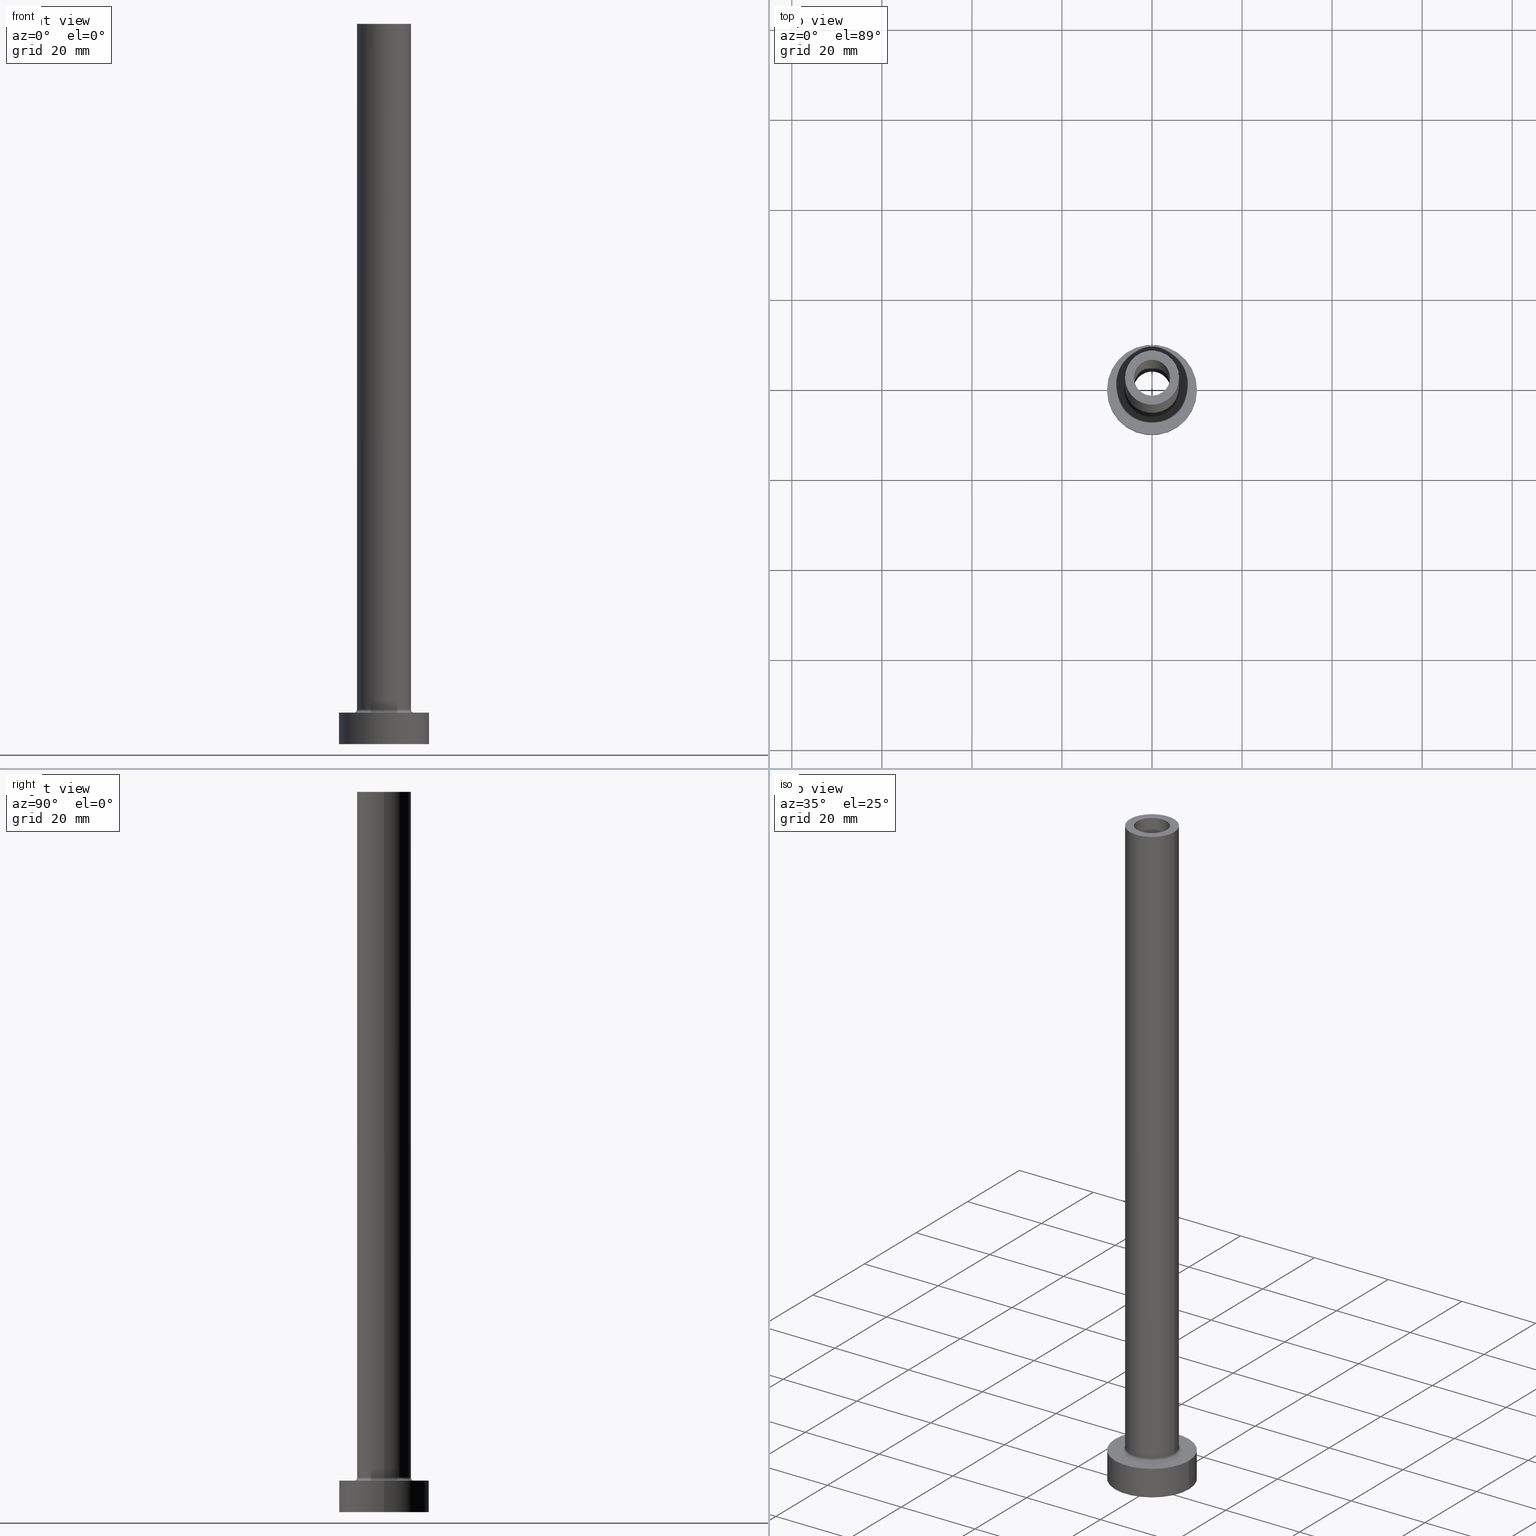
[diagram: canonical four-view strip — front | top / right | iso, engineering-drawing reading convention]
A machine part, canonical four-view strip (front | top / right | iso — engineering-drawing reading convention). The complete STEP part file that produces these views, byte-faithful:
ISO-10303-21;
HEADER;
FILE_DESCRIPTION (( 'STEP AP203' ),
    '1' );
FILE_NAME ('4ad9.STEP',
    '2023-02-13T12:46:25',
    ( '' ),
    ( '' ),
    'SwSTEP 2.0',
    'SolidWorks 2019',
    '' );
FILE_SCHEMA (( 'CONFIG_CONTROL_DESIGN' ));
ENDSEC;

DATA;
#1 = APPROVAL_STATUS ( 'not_yet_approved' ) ;
#2 = CARTESIAN_POINT ( 'NONE',  ( 0.000000000000000000, 0.000000000000000000, 160.0000000000000000 ) ) ;
#3 = CARTESIAN_POINT ( 'NONE',  ( 0.000000000000000000, 0.000000000000000000, 7.700000000000012612 ) ) ;
#4 = CC_DESIGN_PERSON_AND_ORGANIZATION_ASSIGNMENT ( #256, #426, ( #94 ) ) ;
#5 = DIRECTION ( 'NONE',  ( 1.000000000000000000, 0.000000000000000000, -0.000000000000000000 ) ) ;
#6 = AXIS2_PLACEMENT_3D ( 'NONE', #95, #412, #376 ) ;
#7 = ORIENTED_EDGE ( 'NONE', *, *, #296, .T. ) ;
#8 = DIRECTION ( 'NONE',  ( 1.000000000000000000, 0.000000000000000000, 0.000000000000000000 ) ) ;
#9 = ADVANCED_BREP_SHAPE_REPRESENTATION ( '4ad9', ( #167, #405 ), #417 ) ;
#10 = CYLINDRICAL_SURFACE ( 'NONE', #236, 4.150000000000000355 ) ;
#11 =( NAMED_UNIT ( * ) SI_UNIT ( $, .STERADIAN. ) SOLID_ANGLE_UNIT ( ) );
#12 = ORIENTED_EDGE ( 'NONE', *, *, #119, .F. ) ;
#13 = APPROVAL_DATE_TIME ( #342, #14 ) ;
#14 = APPROVAL ( #222, 'NEUR�EN�' ) ;
#15 = AXIS2_PLACEMENT_3D ( 'NONE', #53, #116, #439 ) ;
#16 = ORIENTED_EDGE ( 'NONE', *, *, #203, .F. ) ;
#17 = AXIS2_PLACEMENT_3D ( 'NONE', #457, #315, #384 ) ;
#18 = VERTEX_POINT ( 'NONE', #299 ) ;
#19 = DIRECTION ( 'NONE',  ( -0.000000000000000000, -0.000000000000000000, -1.000000000000000000 ) ) ;
#20 = DIRECTION ( 'NONE',  ( 0.000000000000000000, 0.000000000000000000, 1.000000000000000000 ) ) ;
#21 = CYLINDRICAL_SURFACE ( 'NONE', #355, 4.000000000000000000 ) ;
#22 = ADVANCED_FACE ( 'NONE', ( #294, #332 ), #327, .T. ) ;
#23 = CARTESIAN_POINT ( 'NONE',  ( 4.000000000000000000, 4.898587196589411843E-16, 160.0000000000000000 ) ) ;
#24 = DIRECTION ( 'NONE',  ( 0.000000000000000000, 0.000000000000000000, 1.000000000000000000 ) ) ;
#25 = AXIS2_PLACEMENT_3D ( 'NONE', #269, #410, #272 ) ;
#26 = FACE_OUTER_BOUND ( 'NONE', #185, .T. ) ;
#27 = APPROVAL ( #1, 'NEUR�EN�' ) ;
#28 = VERTEX_POINT ( 'NONE', #263 ) ;
#29 = VERTEX_POINT ( 'NONE', #150 ) ;
#30 = ORIENTED_EDGE ( 'NONE', *, *, #266, .T. ) ;
#31 = CC_DESIGN_APPROVAL ( #14, ( #248 ) ) ;
#32 = DIRECTION ( 'NONE',  ( 1.000000000000000000, 0.000000000000000000, 0.000000000000000000 ) ) ;
#33 = ORIENTED_EDGE ( 'NONE', *, *, #71, .F. ) ;
#34 = FACE_BOUND ( 'NONE', #59, .T. ) ;
#35 = ADVANCED_FACE ( 'NONE', ( #120 ), #10, .F. ) ;
#36 = AXIS2_PLACEMENT_3D ( 'NONE', #372, #295, #400 ) ;
#37 = VECTOR ( 'NONE', #140, 1000.000000000000000 ) ;
#38 = APPLICATION_PROTOCOL_DEFINITION ( 'international standard', 'config_control_design', 1994, #409 ) ;
#39 = LINE ( 'NONE', #43, #65 ) ;
#40 = DATE_TIME_ROLE ( 'classification_date' ) ;
#41 = CARTESIAN_POINT ( 'NONE',  ( 10.00000000000000000, 1.224646799147353256E-15, 0.000000000000000000 ) ) ;
#42 = ADVANCED_FACE ( 'NONE', ( #259 ), #328, .F. ) ;
#43 = CARTESIAN_POINT ( 'NONE',  ( 4.000000000000000000, 4.898587196589411843E-16, 160.0000000000000000 ) ) ;
#44 = ORIENTED_EDGE ( 'NONE', *, *, #391, .F. ) ;
#45 = CARTESIAN_POINT ( 'NONE',  ( 0.000000000000000000, 0.000000000000000000, 160.0000000000000000 ) ) ;
#46 = DIRECTION ( 'NONE',  ( 0.000000000000000000, 0.000000000000000000, -1.000000000000000000 ) ) ;
#47 = CARTESIAN_POINT ( 'NONE',  ( 0.000000000000000000, 0.000000000000000000, 160.0000000000000000 ) ) ;
#48 = CARTESIAN_POINT ( 'NONE',  ( 0.000000000000000000, 0.000000000000000000, 7.700000000000012612 ) ) ;
#49 = CC_DESIGN_APPROVAL ( #175, ( #271 ) ) ;
#50 = COORDINATED_UNIVERSAL_TIME_OFFSET ( 1, 0, .AHEAD. ) ;
#51 = FACE_OUTER_BOUND ( 'NONE', #399, .T. ) ;
#52 = ORIENTED_EDGE ( 'NONE', *, *, #349, .T. ) ;
#53 = CARTESIAN_POINT ( 'NONE',  ( 0.000000000000000000, 0.000000000000000000, 115.0000000000000000 ) ) ;
#54 =( LENGTH_UNIT ( ) NAMED_UNIT ( * ) SI_UNIT ( .MILLI., .METRE. ) );
#55 = DIRECTION ( 'NONE',  ( 1.000000000000000000, 0.000000000000000000, 0.000000000000000000 ) ) ;
#56 = EDGE_CURVE ( 'NONE', #69, #321, #105, .T. ) ;
#57 = DIRECTION ( 'NONE',  ( 1.000000000000000000, 0.000000000000000000, 0.000000000000000000 ) ) ;
#58 = ORIENTED_EDGE ( 'NONE', *, *, #89, .F. ) ;
#59 = EDGE_LOOP ( 'NONE', ( #325, #160 ) ) ;
#60 = AXIS2_PLACEMENT_3D ( 'NONE', #406, #233, #440 ) ;
#61 = AXIS2_PLACEMENT_3D ( 'NONE', #449, #168, #441 ) ;
#62 = CC_DESIGN_PERSON_AND_ORGANIZATION_ASSIGNMENT ( #443, #157, ( #248 ) ) ;
#63 = DIRECTION ( 'NONE',  ( -0.000000000000000000, -0.000000000000000000, -1.000000000000000000 ) ) ;
#64 = FACE_BOUND ( 'NONE', #415, .T. ) ;
#65 = VECTOR ( 'NONE', #46, 1000.000000000000000 ) ;
#66 = EDGE_CURVE ( 'NONE', #386, #91, #85, .T. ) ;
#67 = DIRECTION ( 'NONE',  ( -1.000000000000000000, 1.224646799147353454E-16, 0.000000000000000000 ) ) ;
#68 = DIRECTION ( 'NONE',  ( 0.000000000000000000, 0.000000000000000000, 1.000000000000000000 ) ) ;
#69 = VERTEX_POINT ( 'NONE', #382 ) ;
#70 = APPROVAL_PERSON_ORGANIZATION ( #184, #27, #145 ) ;
#71 = EDGE_CURVE ( 'NONE', #29, #28, #344, .T. ) ;
#72 = LINE ( 'NONE', #358, #37 ) ;
#73 = APPROVAL_DATE_TIME ( #388, #175 ) ;
#74 = ORIENTED_EDGE ( 'NONE', *, *, #89, .T. ) ;
#75 = APPROVAL_DATE_TIME ( #141, #27 ) ;
#76 = DATE_AND_TIME ( #186, #324 ) ;
#77 = ADVANCED_FACE ( 'NONE', ( #130 ), #309, .T. ) ;
#78 = CIRCLE ( 'NONE', #135, 4.000000000000000000 ) ;
#79 = CIRCLE ( 'NONE', #205, 0.7000000000000000666 ) ;
#80 = ORIENTED_EDGE ( 'NONE', *, *, #71, .T. ) ;
#81 = CARTESIAN_POINT ( 'NONE',  ( 0.000000000000000000, 0.000000000000000000, 115.0000000000000000 ) ) ;
#82 = APPROVAL_ROLE ( '' ) ;
#83 = ORIENTED_EDGE ( 'NONE', *, *, #217, .F. ) ;
#84 = CARTESIAN_POINT ( 'NONE',  ( 0.000000000000000000, 0.000000000000000000, 0.000000000000000000 ) ) ;
#85 = CIRCLE ( 'NONE', #189, 10.00000000000000000 ) ;
#86 = DIRECTION ( 'NONE',  ( 0.000000000000000000, 0.000000000000000000, -1.000000000000000000 ) ) ;
#87 = VECTOR ( 'NONE', #63, 1000.000000000000000 ) ;
#88 = DIRECTION ( 'NONE',  ( 1.000000000000000000, 0.000000000000000000, 0.000000000000000000 ) ) ;
#89 = EDGE_CURVE ( 'NONE', #281, #174, #297, .T. ) ;
#90 = FACE_OUTER_BOUND ( 'NONE', #436, .T. ) ;
#91 = VERTEX_POINT ( 'NONE', #41 ) ;
#92 = CC_DESIGN_PERSON_AND_ORGANIZATION_ASSIGNMENT ( #221, #252, ( #271 ) ) ;
#93 = ORIENTED_EDGE ( 'NONE', *, *, #66, .T. ) ;
#94 = SECURITY_CLASSIFICATION ( '', '', #429 ) ;
#95 = CARTESIAN_POINT ( 'NONE',  ( 0.000000000000000000, 0.000000000000000000, 160.0000000000000000 ) ) ;
#96 = CYLINDRICAL_SURFACE ( 'NONE', #61, 4.150000000000000355 ) ;
#97 = CIRCLE ( 'NONE', #416, 4.150000000000000355 ) ;
#98 = CC_DESIGN_PERSON_AND_ORGANIZATION_ASSIGNMENT ( #363, #288, ( #179 ) ) ;
#99 = ORIENTED_EDGE ( 'NONE', *, *, #119, .T. ) ;
#100 = EDGE_LOOP ( 'NONE', ( #33, #133, #267, #362 ) ) ;
#101 = CARTESIAN_POINT ( 'NONE',  ( 0.000000000000000000, 0.000000000000000000, 115.0000000000000000 ) ) ;
#102 = CARTESIAN_POINT ( 'NONE',  ( 6.000000000000000888, 7.347880794884120722E-16, 160.0000000000000000 ) ) ;
#103 = EDGE_CURVE ( 'NONE', #192, #104, #444, .T. ) ;
#104 = VERTEX_POINT ( 'NONE', #102 ) ;
#105 = CIRCLE ( 'NONE', #60, 6.700000000000001066 ) ;
#106 = DIRECTION ( 'NONE',  ( 0.000000000000000000, 0.000000000000000000, 1.000000000000000000 ) ) ;
#107 = EDGE_LOOP ( 'NONE', ( #117, #80, #319, #44 ) ) ;
#108 = DIRECTION ( 'NONE',  ( 1.000000000000000000, 0.000000000000000000, 0.000000000000000000 ) ) ;
#109 = CALENDAR_DATE ( 2023, 13, 2 ) ;
#110 = PRODUCT_DEFINITION_SHAPE ( 'NONE', 'NONE',  #248 ) ;
#111 = ORIENTED_EDGE ( 'NONE', *, *, #407, .F. ) ;
#112 = EDGE_CURVE ( 'NONE', #234, #195, #136, .T. ) ;
#113 = CALENDAR_DATE ( 2023, 13, 2 ) ;
#114 =( NAMED_UNIT ( * ) PLANE_ANGLE_UNIT ( ) SI_UNIT ( $, .RADIAN. ) );
#115 = CIRCLE ( 'NONE', #245, 4.000000000000000000 ) ;
#116 = DIRECTION ( 'NONE',  ( 0.000000000000000000, 0.000000000000000000, 1.000000000000000000 ) ) ;
#117 = ORIENTED_EDGE ( 'NONE', *, *, #198, .T. ) ;
#118 = EDGE_LOOP ( 'NONE', ( #351, #126 ) ) ;
#119 = EDGE_CURVE ( 'NONE', #91, #386, #227, .T. ) ;
#120 = FACE_OUTER_BOUND ( 'NONE', #107, .T. ) ;
#121 = DIRECTION ( 'NONE',  ( 0.000000000000000000, 0.000000000000000000, 1.000000000000000000 ) ) ;
#122 = VERTEX_POINT ( 'NONE', #201 ) ;
#123 = LOCAL_TIME ( 13, 46, 25.00000000000000000, #396 ) ;
#124 = DIRECTION ( 'NONE',  ( 1.000000000000000000, 0.000000000000000000, 0.000000000000000000 ) ) ;
#125 = CC_DESIGN_DATE_AND_TIME_ASSIGNMENT ( #76, #147, ( #248 ) ) ;
#126 = ORIENTED_EDGE ( 'NONE', *, *, #56, .T. ) ;
#127 = CARTESIAN_POINT ( 'NONE',  ( 4.150000000000000355, 5.082284216461515156E-16, 126.7379725676967013 ) ) ;
#128 = AXIS2_PLACEMENT_3D ( 'NONE', #134, #277, #137 ) ;
#129 = APPROVAL_PERSON_ORGANIZATION ( #430, #14, #82 ) ;
#130 = FACE_OUTER_BOUND ( 'NONE', #454, .T. ) ;
#131 = DIRECTION ( 'NONE',  ( 0.000000000000000000, 0.000000000000000000, -1.000000000000000000 ) ) ;
#132 = EDGE_CURVE ( 'NONE', #321, #69, #312, .T. ) ;
#133 = ORIENTED_EDGE ( 'NONE', *, *, #188, .T. ) ;
#134 = CARTESIAN_POINT ( 'NONE',  ( 0.000000000000000000, 0.000000000000000000, 7.700000000000012612 ) ) ;
#135 = AXIS2_PLACEMENT_3D ( 'NONE', #298, #106, #32 ) ;
#136 = CIRCLE ( 'NONE', #244, 10.00000000000000000 ) ;
#137 = DIRECTION ( 'NONE',  ( 1.000000000000000000, 0.000000000000000000, 0.000000000000000000 ) ) ;
#138 = CC_DESIGN_PERSON_AND_ORGANIZATION_ASSIGNMENT ( #287, #250, ( #271 ) ) ;
#139 = CARTESIAN_POINT ( 'NONE',  ( -10.00000000000000000, 0.000000000000000000, 7.000000000000000000 ) ) ;
#140 = DIRECTION ( 'NONE',  ( -0.000000000000000000, -0.000000000000000000, -1.000000000000000000 ) ) ;
#141 = DATE_AND_TIME ( #390, #142 ) ;
#142 = LOCAL_TIME ( 13, 46, 25.00000000000000000, #246 ) ;
#143 = DIRECTION ( 'NONE',  ( 0.000000000000000000, 0.000000000000000000, 1.000000000000000000 ) ) ;
#144 = CARTESIAN_POINT ( 'NONE',  ( -4.150000000000000355, 0.000000000000000000, 126.7379725676967013 ) ) ;
#145 = APPROVAL_ROLE ( '' ) ;
#146 = DIRECTION ( 'NONE',  ( 1.000000000000000000, 0.000000000000000000, 0.000000000000000000 ) ) ;
#147 = DATE_TIME_ROLE ( 'creation_date' ) ;
#148 = LOCAL_TIME ( 13, 46, 25.00000000000000000, #50 ) ;
#149 = DIRECTION ( 'NONE',  ( -0.000000000000000000, -0.000000000000000000, -1.000000000000000000 ) ) ;
#150 = CARTESIAN_POINT ( 'NONE',  ( 4.150000000000000355, 5.082284216461515156E-16, 115.0000000000000000 ) ) ;
#151 = ORIENTED_EDGE ( 'NONE', *, *, #335, .F. ) ;
#152 = ADVANCED_FACE ( 'NONE', ( #90 ), #196, .T. ) ;
#153 = ORIENTED_EDGE ( 'NONE', *, *, #349, .F. ) ;
#154 = ORIENTED_EDGE ( 'NONE', *, *, #418, .T. ) ;
#155 = DIRECTION ( 'NONE',  ( 0.000000000000000000, 0.000000000000000000, 1.000000000000000000 ) ) ;
#156 = ORIENTED_EDGE ( 'NONE', *, *, #217, .T. ) ;
#157 = PERSON_AND_ORGANIZATION_ROLE ( 'creator' ) ;
#158 = EDGE_LOOP ( 'NONE', ( #337, #12 ) ) ;
#159 = CIRCLE ( 'NONE', #379, 0.7000000000000000666 ) ;
#160 = ORIENTED_EDGE ( 'NONE', *, *, #182, .F. ) ;
#161 = VECTOR ( 'NONE', #282, 1000.000000000000000 ) ;
#162 = EDGE_CURVE ( 'NONE', #281, #321, #159, .T. ) ;
#163 = DIRECTION ( 'NONE',  ( -1.000000000000000000, 0.000000000000000000, 0.000000000000000000 ) ) ;
#164 = ORIENTED_EDGE ( 'NONE', *, *, #413, .F. ) ;
#165 = DIRECTION ( 'NONE',  ( 1.000000000000000000, 0.000000000000000000, 0.000000000000000000 ) ) ;
#166 = DESIGN_CONTEXT ( 'detailed design', #173, 'design' ) ;
#167 = MANIFOLD_SOLID_BREP ( 'Odebrat vysunut�m4', #306 ) ;
#168 = DIRECTION ( 'NONE',  ( 0.000000000000000000, 0.000000000000000000, -1.000000000000000000 ) ) ;
#169 = AXIS2_PLACEMENT_3D ( 'NONE', #350, #311, #450 ) ;
#170 = CIRCLE ( 'NONE', #411, 6.000000000000000888 ) ;
#171 = PLANE ( 'NONE',  #243 ) ;
#172 = CYLINDRICAL_SURFACE ( 'NONE', #25, 10.00000000000000000 ) ;
#173 = APPLICATION_CONTEXT ( 'configuration controlled 3d designs of mechanical parts and assemblies' ) ;
#174 = VERTEX_POINT ( 'NONE', #290 ) ;
#175 = APPROVAL ( #181, 'NEUR�EN�' ) ;
#176 = CARTESIAN_POINT ( 'NONE',  ( 0.000000000000000000, 0.000000000000000000, 115.0000000000000000 ) ) ;
#177 = VERTEX_POINT ( 'NONE', #432 ) ;
#178 = FACE_OUTER_BOUND ( 'NONE', #158, .T. ) ;
#179 = PRODUCT ( '4ad9', '4ad9', '', ( #183 ) ) ;
#180 = AXIS2_PLACEMENT_3D ( 'NONE', #45, #149, #303 ) ;
#181 = APPROVAL_STATUS ( 'not_yet_approved' ) ;
#182 = EDGE_CURVE ( 'NONE', #28, #18, #438, .T. ) ;
#183 = MECHANICAL_CONTEXT ( 'NONE', #409, 'mechanical' ) ;
#184 = PERSON_AND_ORGANIZATION ( #434, #445 ) ;
#185 = EDGE_LOOP ( 'NONE', ( #314, #52, #190, #83 ) ) ;
#186 = CALENDAR_DATE ( 2023, 13, 2 ) ;
#187 = DIRECTION ( 'NONE',  ( 0.000000000000000000, 0.000000000000000000, 1.000000000000000000 ) ) ;
#188 = EDGE_CURVE ( 'NONE', #29, #302, #97, .T. ) ;
#189 = AXIS2_PLACEMENT_3D ( 'NONE', #235, #374, #446 ) ;
#190 = ORIENTED_EDGE ( 'NONE', *, *, #335, .T. ) ;
#191 = AXIS2_PLACEMENT_3D ( 'NONE', #101, #214, #356 ) ;
#192 = VERTEX_POINT ( 'NONE', #229 ) ;
#193 = DIRECTION ( 'NONE',  ( -0.000000000000000000, -0.000000000000000000, -1.000000000000000000 ) ) ;
#194 = CARTESIAN_POINT ( 'NONE',  ( 0.000000000000000000, 0.000000000000000000, 0.000000000000000000 ) ) ;
#195 = VERTEX_POINT ( 'NONE', #435 ) ;
#196 = CYLINDRICAL_SURFACE ( 'NONE', #180, 6.000000000000000888 ) ;
#197 = DIRECTION ( 'NONE',  ( -1.000000000000000000, 0.000000000000000000, 0.000000000000000000 ) ) ;
#198 = EDGE_CURVE ( 'NONE', #302, #29, #220, .T. ) ;
#199 = DIRECTION ( 'NONE',  ( 0.000000000000000000, 0.000000000000000000, -1.000000000000000000 ) ) ;
#200 = ORIENTED_EDGE ( 'NONE', *, *, #203, .T. ) ;
#201 = CARTESIAN_POINT ( 'NONE',  ( -4.000000000000000000, 0.000000000000000000, 115.0000000000000000 ) ) ;
#202 = DIRECTION ( 'NONE',  ( 1.000000000000000000, 0.000000000000000000, 0.000000000000000000 ) ) ;
#203 = EDGE_CURVE ( 'NONE', #195, #234, #394, .T. ) ;
#204 = FACE_OUTER_BOUND ( 'NONE', #228, .T. ) ;
#205 = AXIS2_PLACEMENT_3D ( 'NONE', #249, #381, #67 ) ;
#206 = VERTEX_POINT ( 'NONE', #338 ) ;
#207 = CARTESIAN_POINT ( 'NONE',  ( -10.00000000000000000, 0.000000000000000000, 7.000000000000000000 ) ) ;
#208 = EDGE_LOOP ( 'NONE', ( #253, #420 ) ) ;
#209 = LINE ( 'NONE', #334, #237 ) ;
#210 = EDGE_CURVE ( 'NONE', #122, #177, #78, .T. ) ;
#211 = ORIENTED_EDGE ( 'NONE', *, *, #418, .F. ) ;
#212 = CARTESIAN_POINT ( 'NONE',  ( -10.00000000000000000, 0.000000000000000000, 0.000000000000000000 ) ) ;
#213 = LOCAL_TIME ( 13, 46, 25.00000000000000000, #323 ) ;
#214 = DIRECTION ( 'NONE',  ( 0.000000000000000000, 0.000000000000000000, 1.000000000000000000 ) ) ;
#215 = EDGE_LOOP ( 'NONE', ( #30, #339, #371, #151 ) ) ;
#216 = PLANE ( 'NONE',  #191 ) ;
#217 = EDGE_CURVE ( 'NONE', #177, #122, #115, .T. ) ;
#218 = CARTESIAN_POINT ( 'NONE',  ( 6.000000000000000888, 7.347880794884120722E-16, 160.0000000000000000 ) ) ;
#219 = PERSON_AND_ORGANIZATION ( #434, #445 ) ;
#220 = CIRCLE ( 'NONE', #15, 4.150000000000000355 ) ;
#221 = PERSON_AND_ORGANIZATION ( #434, #445 ) ;
#222 = APPROVAL_STATUS ( 'not_yet_approved' ) ;
#223 = DIRECTION ( 'NONE',  ( -0.000000000000000000, -0.000000000000000000, -1.000000000000000000 ) ) ;
#224 = CARTESIAN_POINT ( 'NONE',  ( 0.000000000000000000, 0.000000000000000000, 7.000000000000000000 ) ) ;
#225 = EDGE_CURVE ( 'NONE', #104, #281, #455, .T. ) ;
#226 = CARTESIAN_POINT ( 'NONE',  ( 0.000000000000000000, 0.000000000000000000, 0.000000000000000000 ) ) ;
#227 = CIRCLE ( 'NONE', #346, 10.00000000000000000 ) ;
#228 = EDGE_LOOP ( 'NONE', ( #456, #261 ) ) ;
#229 = CARTESIAN_POINT ( 'NONE',  ( -6.000000000000000888, 0.000000000000000000, 160.0000000000000000 ) ) ;
#230 = CARTESIAN_POINT ( 'NONE',  ( 0.000000000000000000, 0.000000000000000000, 7.000000000000000000 ) ) ;
#231 = CARTESIAN_POINT ( 'NONE',  ( 0.000000000000000000, 0.000000000000000000, 7.700000000000012612 ) ) ;
#232 = DIRECTION ( 'NONE',  ( 1.000000000000000000, 0.000000000000000000, 0.000000000000000000 ) ) ;
#233 = DIRECTION ( 'NONE',  ( -0.000000000000000000, -0.000000000000000000, -1.000000000000000000 ) ) ;
#234 = VERTEX_POINT ( 'NONE', #139 ) ;
#235 = CARTESIAN_POINT ( 'NONE',  ( 0.000000000000000000, 0.000000000000000000, 0.000000000000000000 ) ) ;
#236 = AXIS2_PLACEMENT_3D ( 'NONE', #291, #86, #365 ) ;
#237 = VECTOR ( 'NONE', #193, 1000.000000000000000 ) ;
#238 = ORIENTED_EDGE ( 'NONE', *, *, #56, .F. ) ;
#239 = FACE_OUTER_BOUND ( 'NONE', #100, .T. ) ;
#240 = UNCERTAINTY_MEASURE_WITH_UNIT (LENGTH_MEASURE( 1.000000000000000082E-05 ), #54, 'distance_accuracy_value', 'NONE');
#241 = CYLINDRICAL_SURFACE ( 'NONE', #285, 4.000000000000000000 ) ;
#242 = DIRECTION ( 'NONE',  ( 0.000000000000000000, 0.000000000000000000, -1.000000000000000000 ) ) ;
#243 = AXIS2_PLACEMENT_3D ( 'NONE', #273, #414, #378 ) ;
#244 = AXIS2_PLACEMENT_3D ( 'NONE', #224, #155, #232 ) ;
#245 = AXIS2_PLACEMENT_3D ( 'NONE', #176, #359, #316 ) ;
#246 = COORDINATED_UNIVERSAL_TIME_OFFSET ( 1, 0, .AHEAD. ) ;
#247 = FACE_OUTER_BOUND ( 'NONE', #208, .T. ) ;
#248 = PRODUCT_DEFINITION ( 'NEZN�M�', '', #271, #166 ) ;
#249 = CARTESIAN_POINT ( 'NONE',  ( -6.700000000000001066, 8.205133554287267548E-16, 7.700000000000012612 ) ) ;
#250 = PERSON_AND_ORGANIZATION_ROLE ( 'design_supplier' ) ;
#251 = DIRECTION ( 'NONE',  ( 1.000000000000000000, 0.000000000000000000, 0.000000000000000000 ) ) ;
#252 = PERSON_AND_ORGANIZATION_ROLE ( 'creator' ) ;
#253 = ORIENTED_EDGE ( 'NONE', *, *, #198, .F. ) ;
#254 = VECTOR ( 'NONE', #242, 1000.000000000000000 ) ;
#255 = TOROIDAL_SURFACE ( 'NONE', #264, 6.700000000000001066, 0.6999999999999999556 ) ;
#256 = PERSON_AND_ORGANIZATION ( #434, #445 ) ;
#257 = ADVANCED_FACE ( 'NONE', ( #280, #247 ), #216, .F. ) ;
#258 = CARTESIAN_POINT ( 'NONE',  ( 0.000000000000000000, 0.000000000000000000, 7.000000000000000000 ) ) ;
#259 = FACE_OUTER_BOUND ( 'NONE', #286, .T. ) ;
#260 = DIRECTION ( 'NONE',  ( 0.000000000000000000, 0.000000000000000000, 1.000000000000000000 ) ) ;
#261 = ORIENTED_EDGE ( 'NONE', *, *, #373, .T. ) ;
#262 = DIRECTION ( 'NONE',  ( 0.000000000000000000, 0.000000000000000000, -1.000000000000000000 ) ) ;
#263 = CARTESIAN_POINT ( 'NONE',  ( 4.150000000000000355, 5.082284216461515156E-16, 0.000000000000000000 ) ) ;
#264 = AXIS2_PLACEMENT_3D ( 'NONE', #231, #20, #343 ) ;
#265 = ORIENTED_EDGE ( 'NONE', *, *, #373, .F. ) ;
#266 = EDGE_CURVE ( 'NONE', #206, #317, #361, .T. ) ;
#267 = ORIENTED_EDGE ( 'NONE', *, *, #391, .T. ) ;
#268 = DIRECTION ( 'NONE',  ( 0.000000000000000000, 0.000000000000000000, -1.000000000000000000 ) ) ;
#269 = CARTESIAN_POINT ( 'NONE',  ( 0.000000000000000000, 0.000000000000000000, 7.000000000000000000 ) ) ;
#270 = ADVANCED_FACE ( 'NONE', ( #34, #178 ), #320, .F. ) ;
#271 = PRODUCT_DEFINITION_FORMATION_WITH_SPECIFIED_SOURCE ( 'LIBOVOLN�', '', #179, .NOT_KNOWN. ) ;
#272 = DIRECTION ( 'NONE',  ( -1.000000000000000000, 0.000000000000000000, 0.000000000000000000 ) ) ;
#273 = CARTESIAN_POINT ( 'NONE',  ( 0.000000000000000000, 0.000000000000000000, 160.0000000000000000 ) ) ;
#274 = EDGE_LOOP ( 'NONE', ( #16, #369, #99, #419 ) ) ;
#275 = ADVANCED_FACE ( 'NONE', ( #51 ), #255, .F. ) ;
#276 = LINE ( 'NONE', #345, #395 ) ;
#277 = DIRECTION ( 'NONE',  ( 0.000000000000000000, 0.000000000000000000, 1.000000000000000000 ) ) ;
#278 = AXIS2_PLACEMENT_3D ( 'NONE', #370, #121, #57 ) ;
#279 = ORIENTED_EDGE ( 'NONE', *, *, #162, .T. ) ;
#280 = FACE_BOUND ( 'NONE', #368, .T. ) ;
#281 = VERTEX_POINT ( 'NONE', #330 ) ;
#282 = DIRECTION ( 'NONE',  ( 0.000000000000000000, 0.000000000000000000, -1.000000000000000000 ) ) ;
#283 = ORIENTED_EDGE ( 'NONE', *, *, #132, .F. ) ;
#284 = APPROVAL_ROLE ( '' ) ;
#285 = AXIS2_PLACEMENT_3D ( 'NONE', #447, #131, #163 ) ;
#286 = EDGE_LOOP ( 'NONE', ( #111, #58, #279, #238 ) ) ;
#287 = PERSON_AND_ORGANIZATION ( #434, #445 ) ;
#288 = PERSON_AND_ORGANIZATION_ROLE ( 'design_owner' ) ;
#289 = APPROVAL_PERSON_ORGANIZATION ( #219, #175, #284 ) ;
#290 = CARTESIAN_POINT ( 'NONE',  ( -6.000000000000000888, 0.000000000000000000, 7.700000000000012612 ) ) ;
#291 = CARTESIAN_POINT ( 'NONE',  ( 0.000000000000000000, 0.000000000000000000, 126.7379725676967013 ) ) ;
#292 = ORIENTED_EDGE ( 'NONE', *, *, #225, .T. ) ;
#293 = DIRECTION ( 'NONE',  ( 0.000000000000000000, -1.000000000000000000, 0.000000000000000000 ) ) ;
#294 = FACE_BOUND ( 'NONE', #118, .T. ) ;
#295 = DIRECTION ( 'NONE',  ( -0.000000000000000000, -0.000000000000000000, -1.000000000000000000 ) ) ;
#296 = EDGE_CURVE ( 'NONE', #234, #386, #305, .T. ) ;
#297 = CIRCLE ( 'NONE', #128, 6.000000000000000888 ) ;
#298 = CARTESIAN_POINT ( 'NONE',  ( 0.000000000000000000, 0.000000000000000000, 115.0000000000000000 ) ) ;
#299 = CARTESIAN_POINT ( 'NONE',  ( -4.150000000000000355, 0.000000000000000000, 0.000000000000000000 ) ) ;
#300 = ORIENTED_EDGE ( 'NONE', *, *, #112, .F. ) ;
#301 = FACE_OUTER_BOUND ( 'NONE', #402, .T. ) ;
#302 = VERTEX_POINT ( 'NONE', #348 ) ;
#303 = DIRECTION ( 'NONE',  ( -1.000000000000000000, 0.000000000000000000, 0.000000000000000000 ) ) ;
#304 = ADVANCED_FACE ( 'NONE', ( #301 ), #172, .T. ) ;
#305 = LINE ( 'NONE', #207, #87 ) ;
#306 = CLOSED_SHELL ( 'NONE', ( #460, #35, #275, #152, #385, #304, #22, #270, #77, #377, #42, #367, #257, #341 ) ) ;
#307 = CC_DESIGN_APPROVAL ( #27, ( #94 ) ) ;
#308 = CARTESIAN_POINT ( 'NONE',  ( 6.700000000000001066, 0.000000000000000000, 7.000000000000006217 ) ) ;
#309 = CYLINDRICAL_SURFACE ( 'NONE', #169, 6.000000000000000888 ) ;
#310 = CARTESIAN_POINT ( 'NONE',  ( 0.000000000000000000, 0.000000000000000000, 160.0000000000000000 ) ) ;
#311 = DIRECTION ( 'NONE',  ( -0.000000000000000000, -0.000000000000000000, -1.000000000000000000 ) ) ;
#312 = CIRCLE ( 'NONE', #428, 6.700000000000001066 ) ;
#313 = AXIS2_PLACEMENT_3D ( 'NONE', #3, #404, #88 ) ;
#314 = ORIENTED_EDGE ( 'NONE', *, *, #451, .F. ) ;
#315 = DIRECTION ( 'NONE',  ( -0.000000000000000000, -0.000000000000000000, -1.000000000000000000 ) ) ;
#316 = DIRECTION ( 'NONE',  ( 1.000000000000000000, 0.000000000000000000, 0.000000000000000000 ) ) ;
#317 = VERTEX_POINT ( 'NONE', #23 ) ;
#318 = LINE ( 'NONE', #144, #161 ) ;
#319 = ORIENTED_EDGE ( 'NONE', *, *, #182, .T. ) ;
#320 = PLANE ( 'NONE',  #347 ) ;
#321 = VERTEX_POINT ( 'NONE', #308 ) ;
#322 = CARTESIAN_POINT ( 'NONE',  ( 0.000000000000000000, 0.000000000000000000, 160.0000000000000000 ) ) ;
#323 = COORDINATED_UNIVERSAL_TIME_OFFSET ( 1, 0, .AHEAD. ) ;
#324 = LOCAL_TIME ( 13, 46, 25.00000000000000000, #387 ) ;
#325 = ORIENTED_EDGE ( 'NONE', *, *, #424, .F. ) ;
#326 = CARTESIAN_POINT ( 'NONE',  ( 6.700000000000001066, 0.000000000000000000, 7.700000000000012612 ) ) ;
#327 = PLANE ( 'NONE',  #366 ) ;
#328 = TOROIDAL_SURFACE ( 'NONE', #459, 6.700000000000001066, 0.6999999999999999556 ) ;
#329 = CC_DESIGN_SECURITY_CLASSIFICATION ( #94, ( #271 ) ) ;
#330 = CARTESIAN_POINT ( 'NONE',  ( 6.000000000000000888, 7.347880794884120722E-16, 7.700000000000012612 ) ) ;
#331 = ORIENTED_EDGE ( 'NONE', *, *, #401, .F. ) ;
#332 = FACE_OUTER_BOUND ( 'NONE', #389, .T. ) ;
#333 = CALENDAR_DATE ( 2023, 13, 2 ) ;
#334 = CARTESIAN_POINT ( 'NONE',  ( 10.00000000000000000, 1.224646799147353256E-15, 7.000000000000000000 ) ) ;
#335 = EDGE_CURVE ( 'NONE', #206, #122, #276, .T. ) ;
#336 = DIRECTION ( 'NONE',  ( 0.000000000000000000, 0.000000000000000000, 1.000000000000000000 ) ) ;
#337 = ORIENTED_EDGE ( 'NONE', *, *, #66, .F. ) ;
#338 = CARTESIAN_POINT ( 'NONE',  ( -4.000000000000000000, 0.000000000000000000, 160.0000000000000000 ) ) ;
#339 = ORIENTED_EDGE ( 'NONE', *, *, #451, .T. ) ;
#340 = ORIENTED_EDGE ( 'NONE', *, *, #407, .T. ) ;
#341 = ADVANCED_FACE ( 'NONE', ( #26 ), #241, .F. ) ;
#342 = DATE_AND_TIME ( #333, #148 ) ;
#343 = DIRECTION ( 'NONE',  ( 1.000000000000000000, 0.000000000000000000, 0.000000000000000000 ) ) ;
#344 = LINE ( 'NONE', #127, #254 ) ;
#345 = CARTESIAN_POINT ( 'NONE',  ( -4.000000000000000000, 0.000000000000000000, 160.0000000000000000 ) ) ;
#346 = AXIS2_PLACEMENT_3D ( 'NONE', #84, #336, #124 ) ;
#347 = AXIS2_PLACEMENT_3D ( 'NONE', #398, #260, #364 ) ;
#348 = CARTESIAN_POINT ( 'NONE',  ( -4.150000000000000355, 0.000000000000000000, 115.0000000000000000 ) ) ;
#349 = EDGE_CURVE ( 'NONE', #317, #206, #453, .T. ) ;
#350 = CARTESIAN_POINT ( 'NONE',  ( 0.000000000000000000, 0.000000000000000000, 160.0000000000000000 ) ) ;
#351 = ORIENTED_EDGE ( 'NONE', *, *, #132, .T. ) ;
#352 = FACE_OUTER_BOUND ( 'NONE', #274, .T. ) ;
#353 = ORIENTED_EDGE ( 'NONE', *, *, #162, .F. ) ;
#354 = DIRECTION ( 'NONE',  ( 1.000000000000000000, 0.000000000000000000, 0.000000000000000000 ) ) ;
#355 = AXIS2_PLACEMENT_3D ( 'NONE', #47, #262, #197 ) ;
#356 = DIRECTION ( 'NONE',  ( 1.000000000000000000, 0.000000000000000000, -0.000000000000000000 ) ) ;
#357 = ORIENTED_EDGE ( 'NONE', *, *, #266, .F. ) ;
#358 = CARTESIAN_POINT ( 'NONE',  ( -6.000000000000000888, 0.000000000000000000, 160.0000000000000000 ) ) ;
#359 = DIRECTION ( 'NONE',  ( 0.000000000000000000, 0.000000000000000000, 1.000000000000000000 ) ) ;
#360 = PRODUCT_RELATED_PRODUCT_CATEGORY ( 'detail', '', ( #179 ) ) ;
#361 = CIRCLE ( 'NONE', #461, 4.000000000000000000 ) ;
#362 = ORIENTED_EDGE ( 'NONE', *, *, #424, .T. ) ;
#363 = PERSON_AND_ORGANIZATION ( #434, #445 ) ;
#364 = DIRECTION ( 'NONE',  ( 1.000000000000000000, 0.000000000000000000, -0.000000000000000000 ) ) ;
#365 = DIRECTION ( 'NONE',  ( -1.000000000000000000, 0.000000000000000000, 0.000000000000000000 ) ) ;
#366 = AXIS2_PLACEMENT_3D ( 'NONE', #230, #187, #5 ) ;
#367 = ADVANCED_FACE ( 'NONE', ( #239 ), #96, .F. ) ;
#368 = EDGE_LOOP ( 'NONE', ( #433, #156 ) ) ;
#369 = ORIENTED_EDGE ( 'NONE', *, *, #413, .T. ) ;
#370 = CARTESIAN_POINT ( 'NONE',  ( 0.000000000000000000, 0.000000000000000000, 7.000000000000000000 ) ) ;
#371 = ORIENTED_EDGE ( 'NONE', *, *, #210, .F. ) ;
#372 = CARTESIAN_POINT ( 'NONE',  ( 0.000000000000000000, 0.000000000000000000, 0.000000000000000000 ) ) ;
#373 = EDGE_CURVE ( 'NONE', #104, #192, #170, .T. ) ;
#374 = DIRECTION ( 'NONE',  ( 0.000000000000000000, 0.000000000000000000, 1.000000000000000000 ) ) ;
#375 = VECTOR ( 'NONE', #392, 1000.000000000000000 ) ;
#376 = DIRECTION ( 'NONE',  ( 1.000000000000000000, 0.000000000000000000, 0.000000000000000000 ) ) ;
#377 = ADVANCED_FACE ( 'NONE', ( #64, #204 ), #171, .T. ) ;
#378 = DIRECTION ( 'NONE',  ( 1.000000000000000000, 0.000000000000000000, -0.000000000000000000 ) ) ;
#379 = AXIS2_PLACEMENT_3D ( 'NONE', #326, #293, #268 ) ;
#380 = CIRCLE ( 'NONE', #422, 4.150000000000000355 ) ;
#381 = DIRECTION ( 'NONE',  ( 1.224646799147353207E-16, 1.000000000000000000, -0.000000000000000000 ) ) ;
#382 = CARTESIAN_POINT ( 'NONE',  ( -6.700000000000001066, 8.205133554287267548E-16, 7.000000000000006217 ) ) ;
#383 = ORIENTED_EDGE ( 'NONE', *, *, #225, .F. ) ;
#384 = DIRECTION ( 'NONE',  ( -1.000000000000000000, 0.000000000000000000, 0.000000000000000000 ) ) ;
#385 = ADVANCED_FACE ( 'NONE', ( #352 ), #458, .T. ) ;
#386 = VERTEX_POINT ( 'NONE', #212 ) ;
#387 = COORDINATED_UNIVERSAL_TIME_OFFSET ( 1, 0, .AHEAD. ) ;
#388 = DATE_AND_TIME ( #109, #213 ) ;
#389 = EDGE_LOOP ( 'NONE', ( #442, #200 ) ) ;
#390 = CALENDAR_DATE ( 2023, 13, 2 ) ;
#391 = EDGE_CURVE ( 'NONE', #302, #18, #318, .T. ) ;
#392 = DIRECTION ( 'NONE',  ( -0.000000000000000000, -0.000000000000000000, -1.000000000000000000 ) ) ;
#393 = DATE_AND_TIME ( #113, #123 ) ;
#394 = CIRCLE ( 'NONE', #278, 10.00000000000000000 ) ;
#395 = VECTOR ( 'NONE', #199, 1000.000000000000000 ) ;
#396 = COORDINATED_UNIVERSAL_TIME_OFFSET ( 1, 0, .AHEAD. ) ;
#397 = FACE_OUTER_BOUND ( 'NONE', #215, .T. ) ;
#398 = CARTESIAN_POINT ( 'NONE',  ( 0.000000000000000000, 0.000000000000000000, 0.000000000000000000 ) ) ;
#399 = EDGE_LOOP ( 'NONE', ( #211, #340, #283, #353 ) ) ;
#400 = DIRECTION ( 'NONE',  ( 1.000000000000000000, 0.000000000000000000, 0.000000000000000000 ) ) ;
#401 = EDGE_CURVE ( 'NONE', #192, #174, #72, .T. ) ;
#402 = EDGE_LOOP ( 'NONE', ( #164, #300, #7, #93 ) ) ;
#403 = DIRECTION ( 'NONE',  ( 0.000000000000000000, 0.000000000000000000, 1.000000000000000000 ) ) ;
#404 = DIRECTION ( 'NONE',  ( 0.000000000000000000, 0.000000000000000000, 1.000000000000000000 ) ) ;
#405 = AXIS2_PLACEMENT_3D ( 'NONE', #226, #423, #146 ) ;
#406 = CARTESIAN_POINT ( 'NONE',  ( 0.000000000000000000, 0.000000000000000000, 7.000000000000000000 ) ) ;
#407 = EDGE_CURVE ( 'NONE', #174, #69, #79, .T. ) ;
#408 = DIRECTION ( 'NONE',  ( 0.000000000000000000, 0.000000000000000000, 1.000000000000000000 ) ) ;
#409 = APPLICATION_CONTEXT ( 'configuration controlled 3d designs of mechanical parts and assemblies' ) ;
#410 = DIRECTION ( 'NONE',  ( -0.000000000000000000, -0.000000000000000000, -1.000000000000000000 ) ) ;
#411 = AXIS2_PLACEMENT_3D ( 'NONE', #310, #24, #202 ) ;
#412 = DIRECTION ( 'NONE',  ( 0.000000000000000000, 0.000000000000000000, 1.000000000000000000 ) ) ;
#413 = EDGE_CURVE ( 'NONE', #195, #91, #209, .T. ) ;
#414 = DIRECTION ( 'NONE',  ( 0.000000000000000000, 0.000000000000000000, 1.000000000000000000 ) ) ;
#415 = EDGE_LOOP ( 'NONE', ( #357, #153 ) ) ;
#416 = AXIS2_PLACEMENT_3D ( 'NONE', #81, #403, #165 ) ;
#417 =( GEOMETRIC_REPRESENTATION_CONTEXT ( 3 ) GLOBAL_UNCERTAINTY_ASSIGNED_CONTEXT ( ( #240 ) ) GLOBAL_UNIT_ASSIGNED_CONTEXT ( ( #54, #114, #11 ) ) REPRESENTATION_CONTEXT ( 'NONE', 'WORKASPACE' ) );
#418 = EDGE_CURVE ( 'NONE', #174, #281, #452, .T. ) ;
#419 = ORIENTED_EDGE ( 'NONE', *, *, #296, .F. ) ;
#420 = ORIENTED_EDGE ( 'NONE', *, *, #188, .F. ) ;
#421 = AXIS2_PLACEMENT_3D ( 'NONE', #2, #68, #354 ) ;
#422 = AXIS2_PLACEMENT_3D ( 'NONE', #194, #223, #251 ) ;
#423 = DIRECTION ( 'NONE',  ( 0.000000000000000000, 0.000000000000000000, 1.000000000000000000 ) ) ;
#424 = EDGE_CURVE ( 'NONE', #18, #28, #380, .T. ) ;
#425 = SHAPE_DEFINITION_REPRESENTATION ( #110, #9 ) ;
#426 = PERSON_AND_ORGANIZATION_ROLE ( 'classification_officer' ) ;
#427 = APPLICATION_PROTOCOL_DEFINITION ( 'international standard', 'config_control_design', 1994, #173 ) ;
#428 = AXIS2_PLACEMENT_3D ( 'NONE', #258, #19, #8 ) ;
#429 = SECURITY_CLASSIFICATION_LEVEL ( 'unclassified' ) ;
#430 = PERSON_AND_ORGANIZATION ( #434, #445 ) ;
#431 = ORIENTED_EDGE ( 'NONE', *, *, #401, .T. ) ;
#432 = CARTESIAN_POINT ( 'NONE',  ( 4.000000000000000000, 4.898587196589411843E-16, 115.0000000000000000 ) ) ;
#433 = ORIENTED_EDGE ( 'NONE', *, *, #210, .T. ) ;
#434 = PERSON ( 'NEUR�EN�', 'NEUR�EN�', 'NEUR�EN�', ('NEUR�EN�'), ('NEUR�EN�'), ('NEUR�EN�') ) ;
#435 = CARTESIAN_POINT ( 'NONE',  ( 10.00000000000000000, 1.224646799147353256E-15, 7.000000000000000000 ) ) ;
#436 = EDGE_LOOP ( 'NONE', ( #265, #292, #74, #331 ) ) ;
#437 = CC_DESIGN_DATE_AND_TIME_ASSIGNMENT ( #393, #40, ( #94 ) ) ;
#438 = CIRCLE ( 'NONE', #36, 4.150000000000000355 ) ;
#439 = DIRECTION ( 'NONE',  ( 1.000000000000000000, 0.000000000000000000, 0.000000000000000000 ) ) ;
#440 = DIRECTION ( 'NONE',  ( 1.000000000000000000, 0.000000000000000000, 0.000000000000000000 ) ) ;
#441 = DIRECTION ( 'NONE',  ( -1.000000000000000000, 0.000000000000000000, 0.000000000000000000 ) ) ;
#442 = ORIENTED_EDGE ( 'NONE', *, *, #112, .T. ) ;
#443 = PERSON_AND_ORGANIZATION ( #434, #445 ) ;
#444 = CIRCLE ( 'NONE', #421, 6.000000000000000888 ) ;
#445 = ORGANIZATION ( 'NEUR�EN�', 'NEUR�EN�', '' ) ;
#446 = DIRECTION ( 'NONE',  ( 1.000000000000000000, 0.000000000000000000, 0.000000000000000000 ) ) ;
#447 = CARTESIAN_POINT ( 'NONE',  ( 0.000000000000000000, 0.000000000000000000, 160.0000000000000000 ) ) ;
#448 = ORIENTED_EDGE ( 'NONE', *, *, #103, .F. ) ;
#449 = CARTESIAN_POINT ( 'NONE',  ( 0.000000000000000000, 0.000000000000000000, 126.7379725676967013 ) ) ;
#450 = DIRECTION ( 'NONE',  ( -1.000000000000000000, 0.000000000000000000, 0.000000000000000000 ) ) ;
#451 = EDGE_CURVE ( 'NONE', #317, #177, #39, .T. ) ;
#452 = CIRCLE ( 'NONE', #313, 6.000000000000000888 ) ;
#453 = CIRCLE ( 'NONE', #6, 4.000000000000000000 ) ;
#454 = EDGE_LOOP ( 'NONE', ( #383, #448, #431, #154 ) ) ;
#455 = LINE ( 'NONE', #218, #375 ) ;
#456 = ORIENTED_EDGE ( 'NONE', *, *, #103, .T. ) ;
#457 = CARTESIAN_POINT ( 'NONE',  ( 0.000000000000000000, 0.000000000000000000, 7.000000000000000000 ) ) ;
#458 = CYLINDRICAL_SURFACE ( 'NONE', #17, 10.00000000000000000 ) ;
#459 = AXIS2_PLACEMENT_3D ( 'NONE', #48, #408, #55 ) ;
#460 = ADVANCED_FACE ( 'NONE', ( #397 ), #21, .F. ) ;
#461 = AXIS2_PLACEMENT_3D ( 'NONE', #322, #143, #108 ) ;
ENDSEC;
END-ISO-10303-21;
